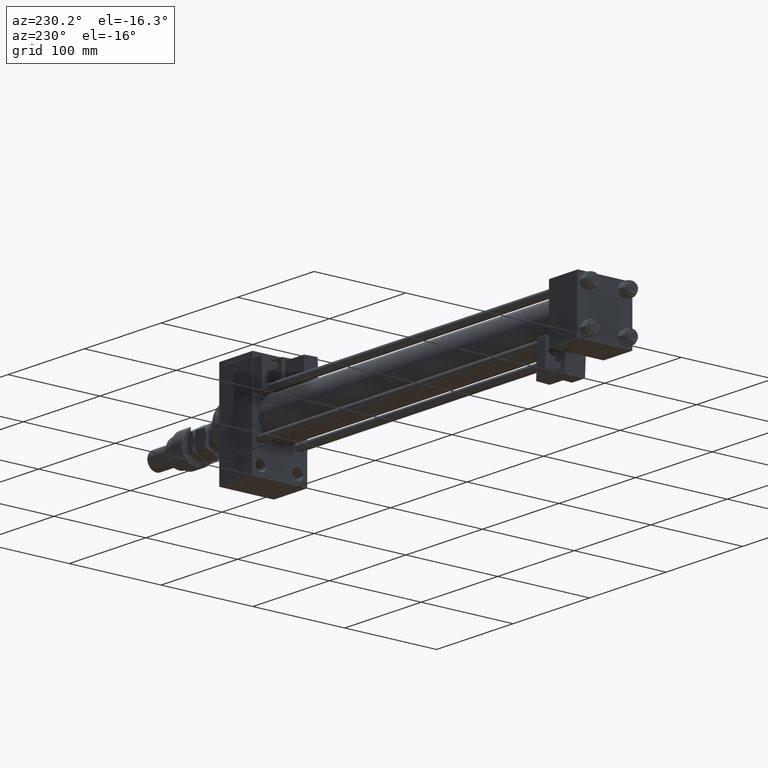
[diagram: clean part render]
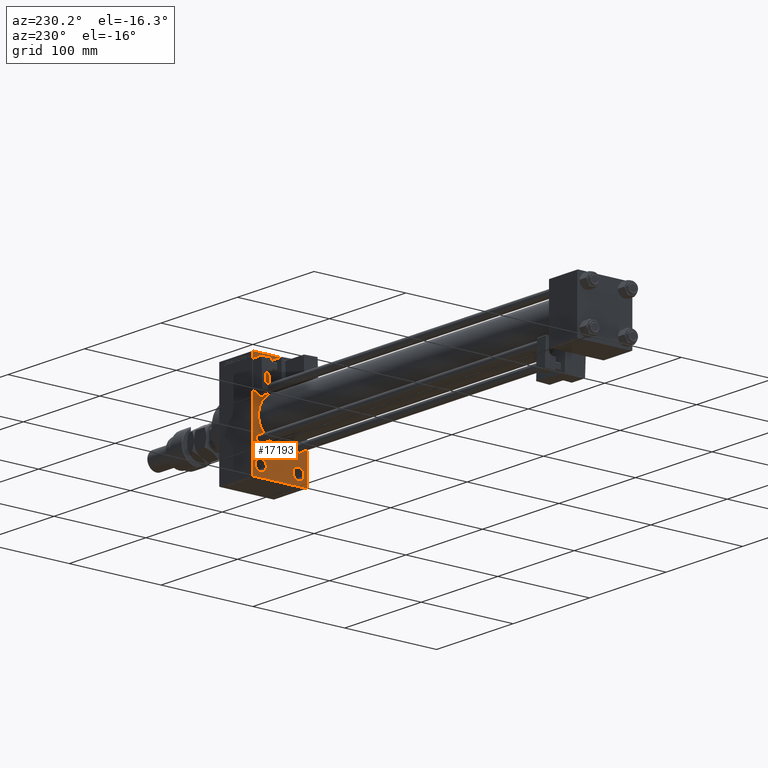
[diagram: same view with one face highlighted and labeled with its STEP entity id]
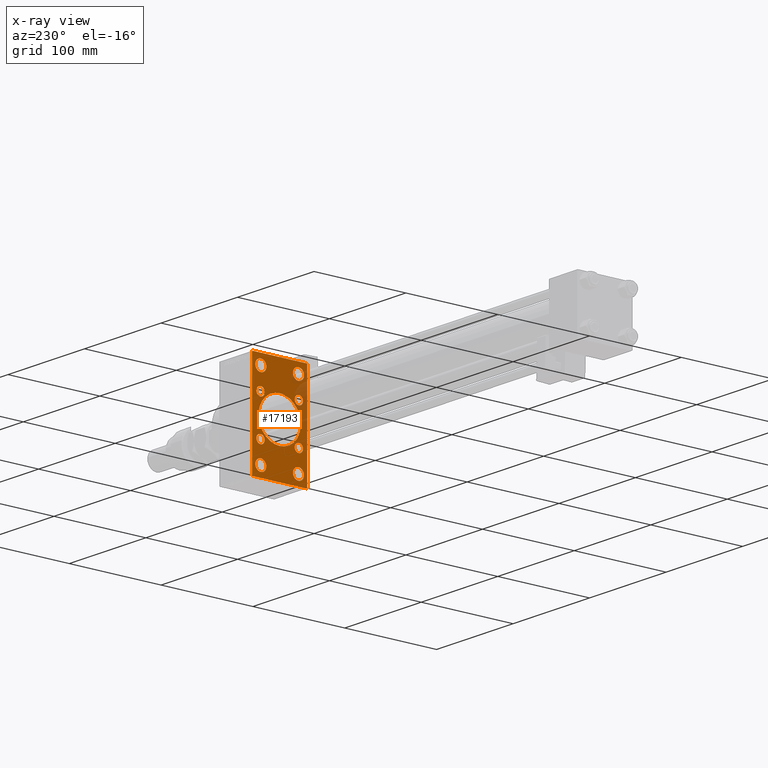
[diagram: x-ray of the same camera — body ghosted, the highlighted face saturated]
A machine part, auxiliary view. The second image highlights one B-rep face of the part: STEP entity #17193.
The next image is the same camera in x-ray: the body ghosted, the highlighted face saturated — about 11% of this face is hidden behind the body in this view.
In plain terms, the highlighted planar face has unit normal (-1, 0, 0).
Its self-contained STEP definition (entity closure, byte-faithful):
#51 = DIRECTION ( 'NONE',  ( 0.000000000000000000, 0.000000000000000000, 1.000000000000000000 ) ) ;
#60 = CARTESIAN_POINT ( 'NONE',  ( 425.0000000000000000, 20.50000000000000000, -37.50000000000004974 ) ) ;
#350 = EDGE_LOOP ( 'NONE', ( #30978, #15398 ) ) ;
#972 = EDGE_CURVE ( 'NONE', #19281, #11050, #15335, .T. ) ;
#1036 = CIRCLE ( 'NONE', #18852, 5.999999999999950262 ) ;
#1301 = ORIENTED_EDGE ( 'NONE', *, *, #21393, .T. ) ;
#1486 = ORIENTED_EDGE ( 'NONE', *, *, #48459, .F. ) ;
#2376 = DIRECTION ( 'NONE',  ( 1.000000000000000000, -0.000000000000000000, 0.000000000000000000 ) ) ;
#2483 = DIRECTION ( 'NONE',  ( -1.000000000000000000, 0.000000000000000000, -0.000000000000000000 ) ) ;
#3186 = ORIENTED_EDGE ( 'NONE', *, *, #42572, .T. ) ;
#3265 = EDGE_CURVE ( 'NONE', #25454, #29567, #50915, .T. ) ;
#3280 = AXIS2_PLACEMENT_3D ( 'NONE', #44104, #32657, #48875 ) ;
#4030 = CARTESIAN_POINT ( 'NONE',  ( 425.0000000000000000, -20.50000000000000000, 49.49999999999995026 ) ) ;
#5053 = ORIENTED_EDGE ( 'NONE', *, *, #23801, .T. ) ;
#5080 = DIRECTION ( 'NONE',  ( 1.000000000000000000, -0.000000000000000000, 0.000000000000000000 ) ) ;
#5125 = CIRCLE ( 'NONE', #13599, 23.00000000000000000 ) ;
#5354 = AXIS2_PLACEMENT_3D ( 'NONE', #39715, #15008, #31230 ) ;
#5736 = DIRECTION ( 'NONE',  ( 0.000000000000000000, 0.000000000000000000, 1.000000000000000000 ) ) ;
#5855 = CARTESIAN_POINT ( 'NONE',  ( 425.0000000000000000, 29.99999999999999645, -53.99999999999993605 ) ) ;
#6713 = PLANE ( 'NONE',  #10142 ) ;
#6837 = VERTEX_POINT ( 'NONE', #4030 ) ;
#6915 = DIRECTION ( 'NONE',  ( 1.000000000000000000, -0.000000000000000000, 0.000000000000000000 ) ) ;
#7399 = ORIENTED_EDGE ( 'NONE', *, *, #11917, .T. ) ;
#7588 = CARTESIAN_POINT ( 'NONE',  ( 425.0000000000000000, -20.50000000000000000, 43.50000000000000000 ) ) ;
#7648 = CARTESIAN_POINT ( 'NONE',  ( 425.0000000000000000, -20.50000000000000000, -37.50000000000004974 ) ) ;
#7828 = DIRECTION ( 'NONE',  ( 0.000000000000000000, 0.000000000000000000, -1.000000000000000000 ) ) ;
#8004 = AXIS2_PLACEMENT_3D ( 'NONE', #17529, #25759, #33724 ) ;
#8006 = CARTESIAN_POINT ( 'NONE',  ( 425.0000000000000000, 42.00000000000166267, 41.99999999999699440 ) ) ;
#8069 = CARTESIAN_POINT ( 'NONE',  ( 425.0000000000000000, -30.00000000000000000, 54.50000000000000000 ) ) ;
#8091 = CARTESIAN_POINT ( 'NONE',  ( 425.0000000000000000, 20.50000000000000000, 49.49999999999995026 ) ) ;
#8128 = EDGE_LOOP ( 'NONE', ( #1301, #37745 ) ) ;
#8273 = DIRECTION ( 'NONE',  ( 1.000000000000000000, -0.000000000000000000, 0.000000000000000000 ) ) ;
#8513 = VERTEX_POINT ( 'NONE', #47491 ) ;
#8556 = DIRECTION ( 'NONE',  ( 1.000000000000000000, -0.000000000000000000, 0.000000000000000000 ) ) ;
#8940 = CIRCLE ( 'NONE', #15755, 4.500000000000007105 ) ;
#9189 = VERTEX_POINT ( 'NONE', #40877 ) ;
#9775 = ORIENTED_EDGE ( 'NONE', *, *, #48877, .T. ) ;
#9869 = VERTEX_POINT ( 'NONE', #35624 ) ;
#10142 = AXIS2_PLACEMENT_3D ( 'NONE', #47662, #2483, #51119 ) ;
#10492 = VECTOR ( 'NONE', #7828, 1000.000000000000000 ) ;
#11050 = VERTEX_POINT ( 'NONE', #48589 ) ;
#11602 = CIRCLE ( 'NONE', #37914, 23.00000000000000000 ) ;
#11740 = ORIENTED_EDGE ( 'NONE', *, *, #31846, .T. ) ;
#11917 = EDGE_CURVE ( 'NONE', #9869, #39321, #11602, .T. ) ;
#12185 = DIRECTION ( 'NONE',  ( 0.000000000000000000, 0.000000000000000000, 1.000000000000000000 ) ) ;
#12280 = CARTESIAN_POINT ( 'NONE',  ( 425.0000000000000000, -20.84999999999999076, 20.85000000000000497 ) ) ;
#12303 = VECTOR ( 'NONE', #25767, 1000.000000000000000 ) ;
#12581 = AXIS2_PLACEMENT_3D ( 'NONE', #20689, #31624, #12185 ) ;
#12732 = ORIENTED_EDGE ( 'NONE', *, *, #49659, .T. ) ;
#13127 = DIRECTION ( 'NONE',  ( 0.000000000000000000, 0.000000000000000000, -1.000000000000000000 ) ) ;
#13599 = AXIS2_PLACEMENT_3D ( 'NONE', #50609, #14198, #43442 ) ;
#13615 = CARTESIAN_POINT ( 'NONE',  ( 425.0000000000000000, 20.84999999999999787, 20.85000000000000142 ) ) ;
#13870 = CIRCLE ( 'NONE', #5354, 5.999999999999950262 ) ;
#14151 = CARTESIAN_POINT ( 'NONE',  ( 425.0000000000000000, -20.84999999999999076, -20.85000000000000497 ) ) ;
#14180 = EDGE_CURVE ( 'NONE', #37009, #45535, #17667, .T. ) ;
#14198 = DIRECTION ( 'NONE',  ( 1.000000000000000000, 0.000000000000000000, 0.000000000000000000 ) ) ;
#14441 = FACE_BOUND ( 'NONE', #8128, .T. ) ;
#14489 = CARTESIAN_POINT ( 'NONE',  ( 425.0000000000000000, 20.50000000000000000, 37.50000000000004974 ) ) ;
#14546 = VERTEX_POINT ( 'NONE', #42471 ) ;
#15008 = DIRECTION ( 'NONE',  ( 1.000000000000000000, -0.000000000000000000, 0.000000000000000000 ) ) ;
#15070 = CARTESIAN_POINT ( 'NONE',  ( 425.0000000000000000, 41.99999999999996447, -41.99999999999996447 ) ) ;
#15197 = CARTESIAN_POINT ( 'NONE',  ( 425.0000000000000000, -20.84999999999999076, -16.34999999999999787 ) ) ;
#15205 = EDGE_CURVE ( 'NONE', #28654, #6837, #32129, .T. ) ;
#15229 = FACE_BOUND ( 'NONE', #49458, .T. ) ;
#15335 = CIRCLE ( 'NONE', #33980, 5.999999999999950262 ) ;
#15398 = ORIENTED_EDGE ( 'NONE', *, *, #14180, .T. ) ;
#15489 = FACE_BOUND ( 'NONE', #28474, .T. ) ;
#15583 = VECTOR ( 'NONE', #18607, 1000.000000000000000 ) ;
#15755 = AXIS2_PLACEMENT_3D ( 'NONE', #45626, #49619, #5736 ) ;
#16024 = VECTOR ( 'NONE', #29528, 1000.000000000000000 ) ;
#16046 = CARTESIAN_POINT ( 'NONE',  ( 425.0000000000000000, 20.84999999999999787, 20.85000000000000142 ) ) ;
#16533 = EDGE_CURVE ( 'NONE', #17570, #32584, #16784, .T. ) ;
#16702 = EDGE_LOOP ( 'NONE', ( #17623, #16843 ) ) ;
#16784 = LINE ( 'NONE', #49469, #16024 ) ;
#16800 = CARTESIAN_POINT ( 'NONE',  ( 425.0000000000000000, -20.84999999999999076, -20.85000000000000497 ) ) ;
#16843 = ORIENTED_EDGE ( 'NONE', *, *, #3265, .T. ) ;
#16996 = VERTEX_POINT ( 'NONE', #40259 ) ;
#17100 = CIRCLE ( 'NONE', #20463, 4.500000000000007105 ) ;
#17193 = ADVANCED_FACE ( 'NONE', ( #34909, #30669, #15489, #51641, #15229, #23733, #19477, #14441, #47404, #43672 ), #6713, .T. ) ;
#17391 = CIRCLE ( 'NONE', #44569, 5.999999999999950262 ) ;
#17395 = CIRCLE ( 'NONE', #47124, 4.500000000000007105 ) ;
#17529 = CARTESIAN_POINT ( 'NONE',  ( 425.0000000000000000, 20.50000000000000000, -43.50000000000000000 ) ) ;
#17570 = VERTEX_POINT ( 'NONE', #26600 ) ;
#17623 = ORIENTED_EDGE ( 'NONE', *, *, #20131, .T. ) ;
#17667 = CIRCLE ( 'NONE', #12581, 5.999999999999950262 ) ;
#18289 = ORIENTED_EDGE ( 'NONE', *, *, #19943, .T. ) ;
#18591 = DIRECTION ( 'NONE',  ( 0.000000000000000000, 0.000000000000000000, 1.000000000000000000 ) ) ;
#18607 = DIRECTION ( 'NONE',  ( 0.000000000000000000, -1.000000000000000000, 1.156482317317871478E-16 ) ) ;
#18615 = EDGE_LOOP ( 'NONE', ( #7399, #18289 ) ) ;
#18723 = DIRECTION ( 'NONE',  ( 0.000000000000000000, 0.000000000000000000, 1.000000000000000000 ) ) ;
#18852 = AXIS2_PLACEMENT_3D ( 'NONE', #50767, #22075, #42807 ) ;
#19281 = VERTEX_POINT ( 'NONE', #60 ) ;
#19381 = VERTEX_POINT ( 'NONE', #29821 ) ;
#19477 = FACE_BOUND ( 'NONE', #29527, .T. ) ;
#19495 = DIRECTION ( 'NONE',  ( 1.000000000000000000, -0.000000000000000000, 0.000000000000000000 ) ) ;
#19627 = LINE ( 'NONE', #27861, #47108 ) ;
#19943 = EDGE_CURVE ( 'NONE', #39321, #9869, #5125, .T. ) ;
#19964 = CIRCLE ( 'NONE', #49673, 4.500000000000007105 ) ;
#20131 = EDGE_CURVE ( 'NONE', #29567, #25454, #41687, .T. ) ;
#20463 = AXIS2_PLACEMENT_3D ( 'NONE', #14151, #47372, #23194 ) ;
#20482 = DIRECTION ( 'NONE',  ( 1.000000000000000000, 0.000000000000000000, 0.000000000000000000 ) ) ;
#20688 = ORIENTED_EDGE ( 'NONE', *, *, #34563, .T. ) ;
#20689 = CARTESIAN_POINT ( 'NONE',  ( 425.0000000000000000, 20.50000000000000000, 43.50000000000000000 ) ) ;
#21318 = DIRECTION ( 'NONE',  ( 0.000000000000000000, 0.000000000000000000, 1.000000000000000000 ) ) ;
#21332 = DIRECTION ( 'NONE',  ( 0.000000000000000000, 0.000000000000000000, 1.000000000000000000 ) ) ;
#21393 = EDGE_CURVE ( 'NONE', #47055, #34357, #17100, .T. ) ;
#21488 = CARTESIAN_POINT ( 'NONE',  ( 425.0000000000000000, -29.50000000000005684, -54.50000000000000000 ) ) ;
#22075 = DIRECTION ( 'NONE',  ( 1.000000000000000000, -0.000000000000000000, 0.000000000000000000 ) ) ;
#22271 = CARTESIAN_POINT ( 'NONE',  ( 425.0000000000000000, -30.00000000000000000, 53.99999999999994316 ) ) ;
#22322 = LINE ( 'NONE', #50745, #12303 ) ;
#23194 = DIRECTION ( 'NONE',  ( 0.000000000000000000, 0.000000000000000000, 1.000000000000000000 ) ) ;
#23333 = AXIS2_PLACEMENT_3D ( 'NONE', #51139, #19495, #18723 ) ;
#23688 = VERTEX_POINT ( 'NONE', #22271 ) ;
#23733 = FACE_BOUND ( 'NONE', #16702, .T. ) ;
#23801 = EDGE_CURVE ( 'NONE', #29465, #17570, #31038, .T. ) ;
#24174 = ORIENTED_EDGE ( 'NONE', *, *, #34089, .T. ) ;
#24590 = VERTEX_POINT ( 'NONE', #7648 ) ;
#24986 = ORIENTED_EDGE ( 'NONE', *, *, #33983, .T. ) ;
#25278 = DIRECTION ( 'NONE',  ( 0.000000000000000000, 0.7071067811865081598, -0.7071067811865868746 ) ) ;
#25454 = VERTEX_POINT ( 'NONE', #45525 ) ;
#25533 = ORIENTED_EDGE ( 'NONE', *, *, #16533, .T. ) ;
#25759 = DIRECTION ( 'NONE',  ( 1.000000000000000000, -0.000000000000000000, 0.000000000000000000 ) ) ;
#25767 = DIRECTION ( 'NONE',  ( -0.000000000000000000, 0.7071067811865843211, 0.7071067811865107133 ) ) ;
#25952 = EDGE_CURVE ( 'NONE', #37557, #24590, #1036, .T. ) ;
#26283 = DIRECTION ( 'NONE',  ( 0.000000000000000000, 0.000000000000000000, 1.000000000000000000 ) ) ;
#26600 = CARTESIAN_POINT ( 'NONE',  ( 425.0000000000000000, 29.49999999999993960, -54.49999999999999289 ) ) ;
#27109 = ORIENTED_EDGE ( 'NONE', *, *, #39562, .T. ) ;
#27861 = CARTESIAN_POINT ( 'NONE',  ( 425.0000000000000000, -42.00000000000216716, -41.99999999999604938 ) ) ;
#28185 = ORIENTED_EDGE ( 'NONE', *, *, #36268, .F. ) ;
#28275 = DIRECTION ( 'NONE',  ( 1.000000000000000000, -0.000000000000000000, 0.000000000000000000 ) ) ;
#28340 = DIRECTION ( 'NONE',  ( 1.000000000000000000, -0.000000000000000000, 0.000000000000000000 ) ) ;
#28474 = EDGE_LOOP ( 'NONE', ( #50705, #50214 ) ) ;
#28654 = VERTEX_POINT ( 'NONE', #37372 ) ;
#29465 = VERTEX_POINT ( 'NONE', #5855 ) ;
#29527 = EDGE_LOOP ( 'NONE', ( #3186, #24986 ) ) ;
#29528 = DIRECTION ( 'NONE',  ( 0.000000000000000000, -1.000000000000000000, -1.156482317317871478E-16 ) ) ;
#29567 = VERTEX_POINT ( 'NONE', #31384 ) ;
#29796 = ORIENTED_EDGE ( 'NONE', *, *, #15205, .T. ) ;
#29810 = AXIS2_PLACEMENT_3D ( 'NONE', #13615, #8556, #21332 ) ;
#29821 = CARTESIAN_POINT ( 'NONE',  ( 425.0000000000000000, -20.84999999999999076, 25.35000000000001208 ) ) ;
#30669 = FACE_BOUND ( 'NONE', #34795, .T. ) ;
#30978 = ORIENTED_EDGE ( 'NONE', *, *, #36103, .T. ) ;
#31038 = LINE ( 'NONE', #15070, #41684 ) ;
#31219 = VECTOR ( 'NONE', #13127, 1000.000000000000000 ) ;
#31230 = DIRECTION ( 'NONE',  ( 0.000000000000000000, 0.000000000000000000, 1.000000000000000000 ) ) ;
#31340 = DIRECTION ( 'NONE',  ( 0.000000000000000000, -0.7071067811864960584, 0.7071067811865990871 ) ) ;
#31384 = CARTESIAN_POINT ( 'NONE',  ( 425.0000000000000000, 20.84999999999999787, 25.35000000000000853 ) ) ;
#31624 = DIRECTION ( 'NONE',  ( 1.000000000000000000, -0.000000000000000000, 0.000000000000000000 ) ) ;
#31815 = DIRECTION ( 'NONE',  ( 0.000000000000000000, 0.000000000000000000, 1.000000000000000000 ) ) ;
#31824 = CIRCLE ( 'NONE', #41139, 4.500000000000007105 ) ;
#31846 = EDGE_CURVE ( 'NONE', #6837, #28654, #17391, .T. ) ;
#32047 = CARTESIAN_POINT ( 'NONE',  ( 425.0000000000000000, -20.84999999999999076, -25.35000000000001208 ) ) ;
#32129 = CIRCLE ( 'NONE', #3280, 5.999999999999950262 ) ;
#32266 = DIRECTION ( 'NONE',  ( 0.000000000000000000, 0.000000000000000000, 1.000000000000000000 ) ) ;
#32322 = EDGE_LOOP ( 'NONE', ( #11740, #29796 ) ) ;
#32568 = VERTEX_POINT ( 'NONE', #45664 ) ;
#32584 = VERTEX_POINT ( 'NONE', #21488 ) ;
#32657 = DIRECTION ( 'NONE',  ( 1.000000000000000000, -0.000000000000000000, 0.000000000000000000 ) ) ;
#32941 = EDGE_CURVE ( 'NONE', #34357, #47055, #19964, .T. ) ;
#33265 = EDGE_CURVE ( 'NONE', #19381, #37461, #8940, .T. ) ;
#33724 = DIRECTION ( 'NONE',  ( 0.000000000000000000, 0.000000000000000000, 1.000000000000000000 ) ) ;
#33980 = AXIS2_PLACEMENT_3D ( 'NONE', #43353, #6915, #38560 ) ;
#33983 = EDGE_CURVE ( 'NONE', #9189, #14546, #31824, .T. ) ;
#34089 = EDGE_CURVE ( 'NONE', #32584, #8513, #19627, .T. ) ;
#34257 = DIRECTION ( 'NONE',  ( 1.000000000000000000, -0.000000000000000000, 0.000000000000000000 ) ) ;
#34357 = VERTEX_POINT ( 'NONE', #32047 ) ;
#34563 = EDGE_CURVE ( 'NONE', #24590, #37557, #46220, .T. ) ;
#34795 = EDGE_LOOP ( 'NONE', ( #20688, #48604 ) ) ;
#34909 = FACE_BOUND ( 'NONE', #32322, .T. ) ;
#35055 = CARTESIAN_POINT ( 'NONE',  ( 425.0000000000000000, 20.84999999999999787, -20.85000000000000142 ) ) ;
#35551 = CARTESIAN_POINT ( 'NONE',  ( 425.0000000000000000, -20.50000000000000000, -49.49999999999995026 ) ) ;
#35624 = CARTESIAN_POINT ( 'NONE',  ( 425.0000000000000000, -2.602085213965210642E-15, 23.00000000000000000 ) ) ;
#36103 = EDGE_CURVE ( 'NONE', #45535, #37009, #13870, .T. ) ;
#36268 = EDGE_CURVE ( 'NONE', #45947, #32568, #42540, .T. ) ;
#36736 = ORIENTED_EDGE ( 'NONE', *, *, #42508, .T. ) ;
#37009 = VERTEX_POINT ( 'NONE', #14489 ) ;
#37372 = CARTESIAN_POINT ( 'NONE',  ( 425.0000000000000000, -20.50000000000000000, 37.50000000000004974 ) ) ;
#37461 = VERTEX_POINT ( 'NONE', #47528 ) ;
#37557 = VERTEX_POINT ( 'NONE', #35551 ) ;
#37745 = ORIENTED_EDGE ( 'NONE', *, *, #32941, .T. ) ;
#37914 = AXIS2_PLACEMENT_3D ( 'NONE', #44405, #20482, #48136 ) ;
#38560 = DIRECTION ( 'NONE',  ( 0.000000000000000000, 0.000000000000000000, 1.000000000000000000 ) ) ;
#38778 = CARTESIAN_POINT ( 'NONE',  ( 425.0000000000000000, 20.84999999999999787, -20.85000000000000142 ) ) ;
#39022 = EDGE_CURVE ( 'NONE', #11050, #19281, #52039, .T. ) ;
#39321 = VERTEX_POINT ( 'NONE', #52049 ) ;
#39562 = EDGE_CURVE ( 'NONE', #16996, #29465, #40279, .T. ) ;
#39715 = CARTESIAN_POINT ( 'NONE',  ( 425.0000000000000000, 20.50000000000000000, 43.50000000000000000 ) ) ;
#39743 = AXIS2_PLACEMENT_3D ( 'NONE', #12280, #8273, #51 ) ;
#40259 = CARTESIAN_POINT ( 'NONE',  ( 425.0000000000000000, 29.99999999999999645, 53.99999999999999289 ) ) ;
#40279 = LINE ( 'NONE', #51720, #10492 ) ;
#40877 = CARTESIAN_POINT ( 'NONE',  ( 425.0000000000000000, 20.84999999999999787, -25.35000000000000853 ) ) ;
#41139 = AXIS2_PLACEMENT_3D ( 'NONE', #35055, #34257, #26283 ) ;
#41684 = VECTOR ( 'NONE', #49318, 1000.000000000000114 ) ;
#41687 = CIRCLE ( 'NONE', #29810, 4.500000000000007105 ) ;
#42471 = CARTESIAN_POINT ( 'NONE',  ( 425.0000000000000000, 20.84999999999999787, -16.34999999999999432 ) ) ;
#42508 = EDGE_CURVE ( 'NONE', #23688, #32568, #22322, .T. ) ;
#42540 = LINE ( 'NONE', #42804, #15583 ) ;
#42572 = EDGE_CURVE ( 'NONE', #14546, #9189, #17395, .T. ) ;
#42804 = CARTESIAN_POINT ( 'NONE',  ( 425.0000000000000000, 29.99999999999999645, 54.49999999999999289 ) ) ;
#42807 = DIRECTION ( 'NONE',  ( 0.000000000000000000, 0.000000000000000000, 1.000000000000000000 ) ) ;
#43353 = CARTESIAN_POINT ( 'NONE',  ( 425.0000000000000000, 20.50000000000000000, -43.50000000000000000 ) ) ;
#43442 = DIRECTION ( 'NONE',  ( 0.000000000000000000, 0.000000000000000000, -1.000000000000000000 ) ) ;
#43672 = FACE_OUTER_BOUND ( 'NONE', #45385, .T. ) ;
#43992 = VECTOR ( 'NONE', #25278, 1000.000000000000000 ) ;
#44104 = CARTESIAN_POINT ( 'NONE',  ( 425.0000000000000000, -20.50000000000000000, 43.50000000000000000 ) ) ;
#44405 = CARTESIAN_POINT ( 'NONE',  ( 425.0000000000000000, -2.602085213965210642E-15, 0.000000000000000000 ) ) ;
#44569 = AXIS2_PLACEMENT_3D ( 'NONE', #7588, #28340, #31815 ) ;
#44766 = LINE ( 'NONE', #8069, #31219 ) ;
#45230 = LINE ( 'NONE', #8006, #43992 ) ;
#45255 = CARTESIAN_POINT ( 'NONE',  ( 425.0000000000000000, 29.50000000000004974, 54.49999999999999289 ) ) ;
#45385 = EDGE_LOOP ( 'NONE', ( #25533, #24174, #1486, #36736, #28185, #9775, #27109, #5053 ) ) ;
#45525 = CARTESIAN_POINT ( 'NONE',  ( 425.0000000000000000, 20.84999999999999787, 16.34999999999999432 ) ) ;
#45535 = VERTEX_POINT ( 'NONE', #8091 ) ;
#45626 = CARTESIAN_POINT ( 'NONE',  ( 425.0000000000000000, -20.84999999999999076, 20.85000000000000497 ) ) ;
#45664 = CARTESIAN_POINT ( 'NONE',  ( 425.0000000000000000, -29.49999999999988987, 54.50000000000000000 ) ) ;
#45947 = VERTEX_POINT ( 'NONE', #45255 ) ;
#46220 = CIRCLE ( 'NONE', #23333, 5.999999999999950262 ) ;
#46702 = AXIS2_PLACEMENT_3D ( 'NONE', #16046, #28275, #32266 ) ;
#47055 = VERTEX_POINT ( 'NONE', #15197 ) ;
#47108 = VECTOR ( 'NONE', #31340, 1000.000000000000000 ) ;
#47124 = AXIS2_PLACEMENT_3D ( 'NONE', #38778, #2376, #18591 ) ;
#47372 = DIRECTION ( 'NONE',  ( 1.000000000000000000, -0.000000000000000000, 0.000000000000000000 ) ) ;
#47404 = FACE_BOUND ( 'NONE', #18615, .T. ) ;
#47491 = CARTESIAN_POINT ( 'NONE',  ( 425.0000000000000000, -30.00000000000000000, -53.99999999999998579 ) ) ;
#47528 = CARTESIAN_POINT ( 'NONE',  ( 425.0000000000000000, -20.84999999999999076, 16.34999999999999787 ) ) ;
#47662 = CARTESIAN_POINT ( 'NONE',  ( 425.0000000000000000, 0.000000000000000000, 0.000000000000000000 ) ) ;
#48136 = DIRECTION ( 'NONE',  ( 0.000000000000000000, 0.000000000000000000, -1.000000000000000000 ) ) ;
#48459 = EDGE_CURVE ( 'NONE', #23688, #8513, #44766, .T. ) ;
#48589 = CARTESIAN_POINT ( 'NONE',  ( 425.0000000000000000, 20.50000000000000000, -49.49999999999995026 ) ) ;
#48604 = ORIENTED_EDGE ( 'NONE', *, *, #25952, .T. ) ;
#48875 = DIRECTION ( 'NONE',  ( 0.000000000000000000, 0.000000000000000000, 1.000000000000000000 ) ) ;
#48877 = EDGE_CURVE ( 'NONE', #45947, #16996, #45230, .T. ) ;
#49318 = DIRECTION ( 'NONE',  ( -0.000000000000000000, -0.7071067811865474617, -0.7071067811865474617 ) ) ;
#49458 = EDGE_LOOP ( 'NONE', ( #51878, #12732 ) ) ;
#49469 = CARTESIAN_POINT ( 'NONE',  ( 425.0000000000000000, 29.99999999999999645, -54.49999999999999289 ) ) ;
#49619 = DIRECTION ( 'NONE',  ( 1.000000000000000000, -0.000000000000000000, 0.000000000000000000 ) ) ;
#49659 = EDGE_CURVE ( 'NONE', #37461, #19381, #50784, .T. ) ;
#49673 = AXIS2_PLACEMENT_3D ( 'NONE', #16800, #5080, #21318 ) ;
#50214 = ORIENTED_EDGE ( 'NONE', *, *, #39022, .T. ) ;
#50609 = CARTESIAN_POINT ( 'NONE',  ( 425.0000000000000000, -2.602085213965210642E-15, 0.000000000000000000 ) ) ;
#50705 = ORIENTED_EDGE ( 'NONE', *, *, #972, .T. ) ;
#50745 = CARTESIAN_POINT ( 'NONE',  ( 425.0000000000000000, -41.99999999999841549, 42.00000000000278533 ) ) ;
#50767 = CARTESIAN_POINT ( 'NONE',  ( 425.0000000000000000, -20.50000000000000000, -43.50000000000000000 ) ) ;
#50784 = CIRCLE ( 'NONE', #39743, 4.500000000000007105 ) ;
#50915 = CIRCLE ( 'NONE', #46702, 4.500000000000007105 ) ;
#51119 = DIRECTION ( 'NONE',  ( -0.000000000000000000, 0.000000000000000000, 1.000000000000000000 ) ) ;
#51139 = CARTESIAN_POINT ( 'NONE',  ( 425.0000000000000000, -20.50000000000000000, -43.50000000000000000 ) ) ;
#51641 = FACE_BOUND ( 'NONE', #350, .T. ) ;
#51720 = CARTESIAN_POINT ( 'NONE',  ( 425.0000000000000000, 29.99999999999999645, 54.49999999999999289 ) ) ;
#51878 = ORIENTED_EDGE ( 'NONE', *, *, #33265, .T. ) ;
#52039 = CIRCLE ( 'NONE', #8004, 5.999999999999950262 ) ;
#52049 = CARTESIAN_POINT ( 'NONE',  ( 425.0000000000000000, 2.146024240737012665E-16, -23.00000000000000000 ) ) ;